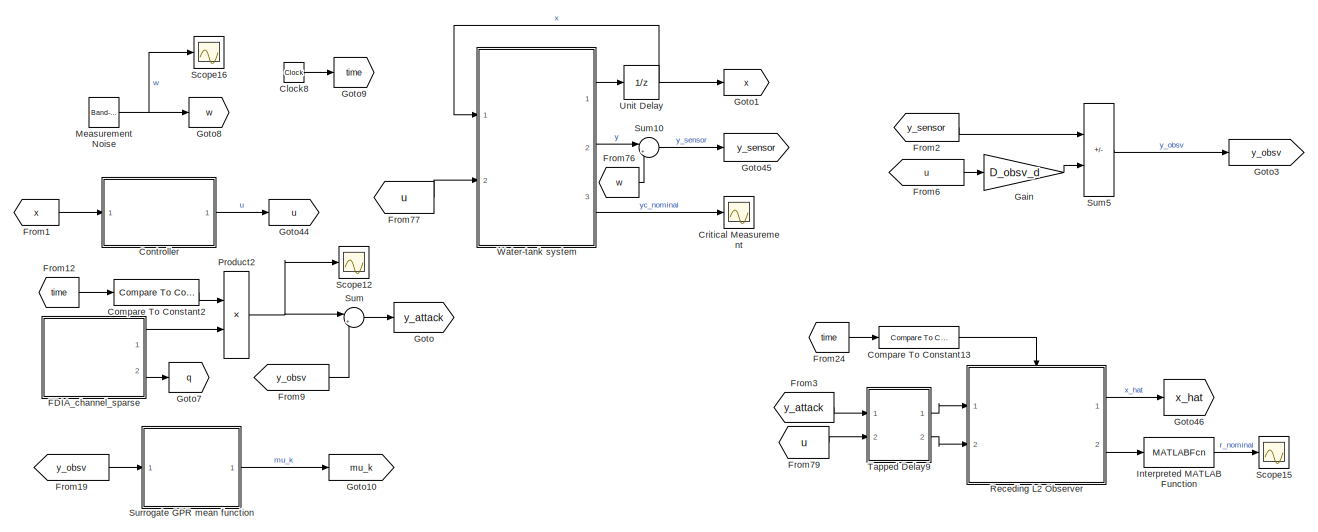
[diagram: root canvas - part 1/3, top left region]
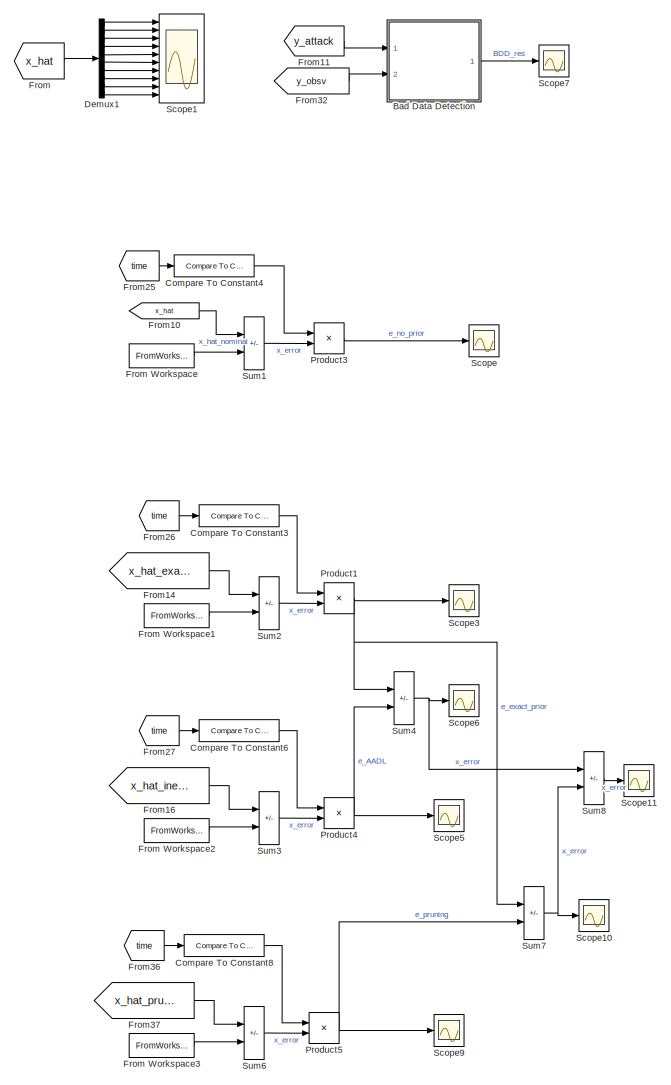
[diagram: root canvas - part 2/3, right side, full height]
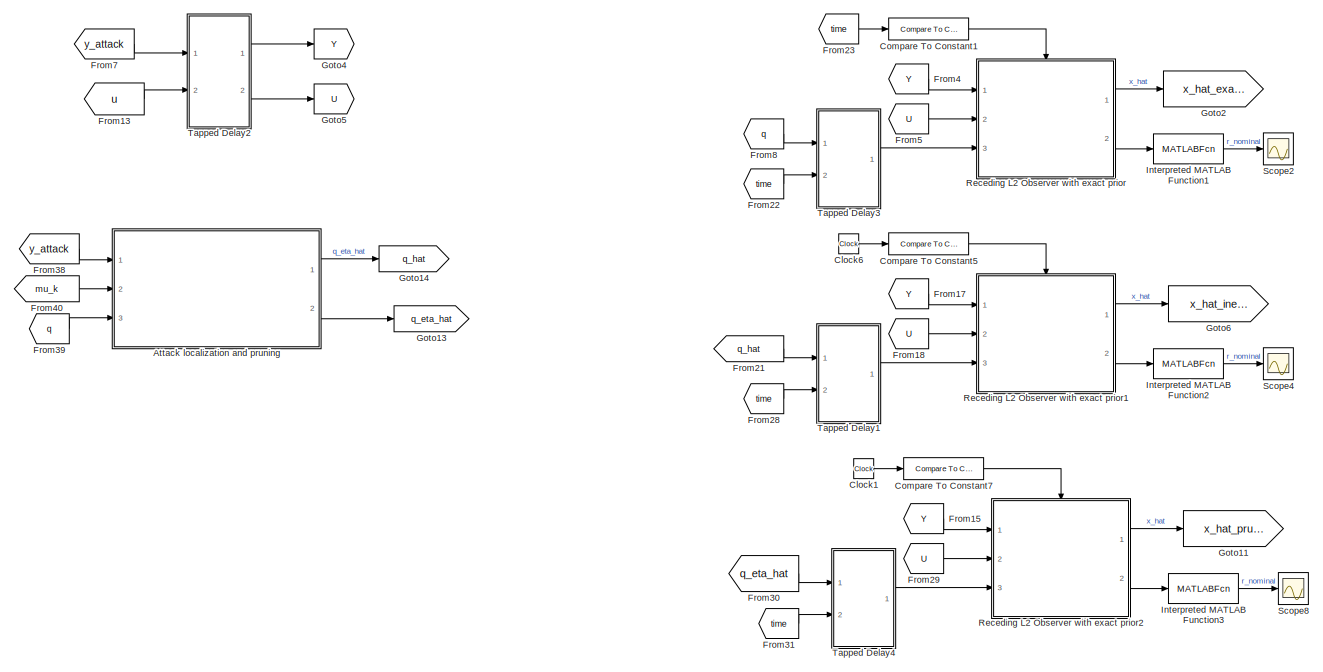
[diagram: root canvas - part 3/3, bottom left region]
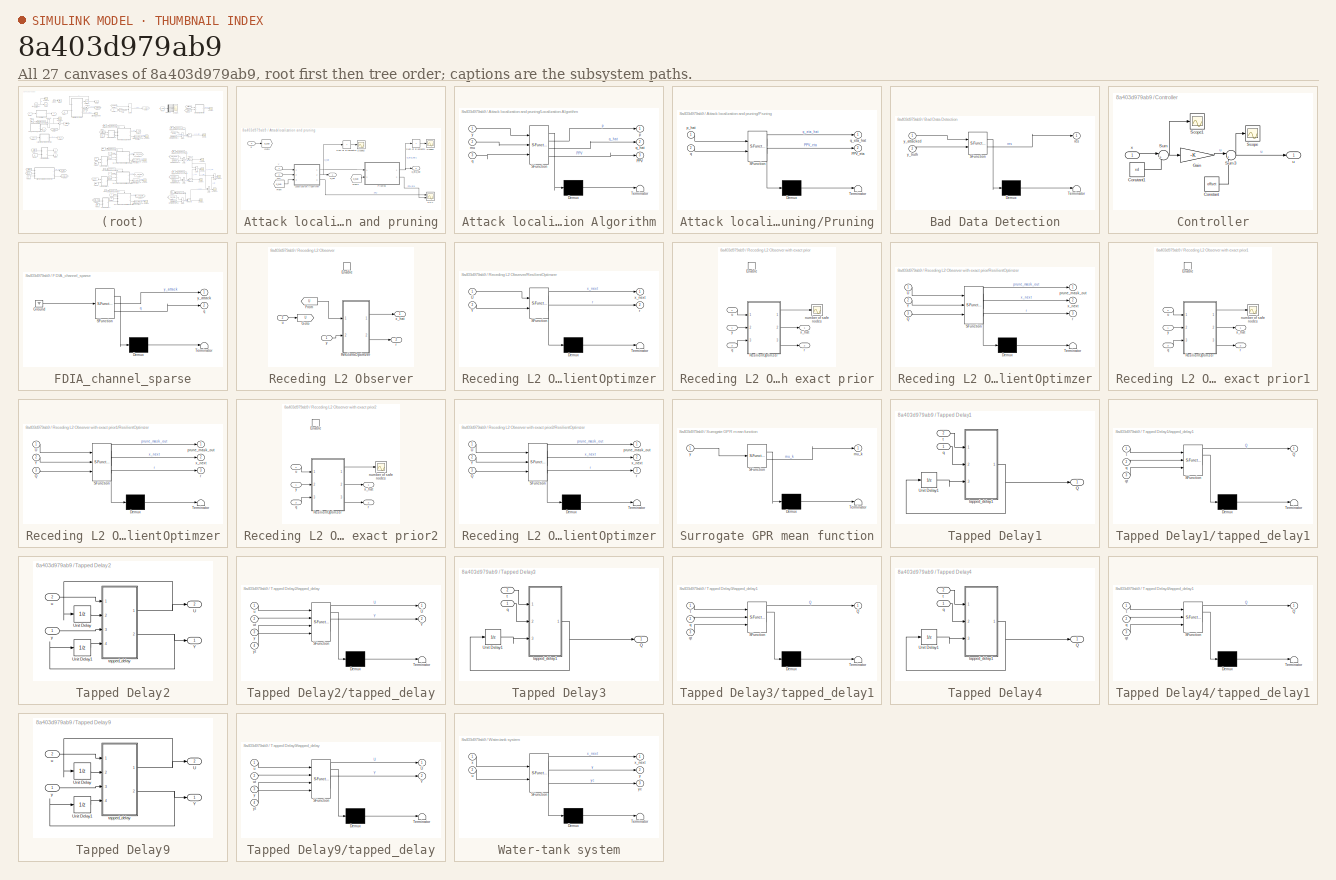
[diagram: thumbnail index - all 27 canvases of the model, root first then tree order]
MODEL slx_8a403d979ab9
KIND model
CONFIG AbsTol = auto
CONFIG EnableMultiTasking = off
CONFIG FixedStep = T_sample
CONFIG MaxStep = auto
CONFIG MinStep = auto
CONFIG RelTol = 1e-3
CONFIG SampleTimeConstraint = Unconstrained
CONFIG SolverName = FixedStepDiscrete
CONFIG StartTime = 0.0
CONFIG StopTime = T_final
BLOCK [SubSystem] Attack localization and pruning
  Ports = [3, 2]
  RequestExecContextInheritance = off
BLOCK [From] Attack localization and pruning/From
  GotoTag = q_sub
BLOCK [From] Attack localization and pruning/From1
  GotoTag = q_sub
BLOCK [Goto] Attack localization and pruning/Goto
  GotoTag = q_sub
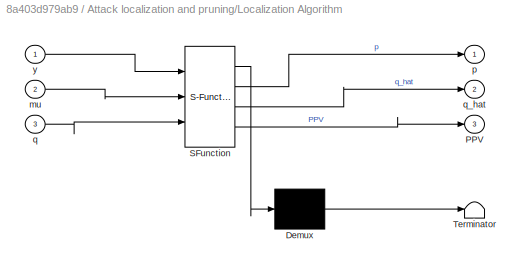
BLOCK [SubSystem] Attack localization and pruning/Localization Algorithm
  ErrorFcn = Stateflow.Translate.translate
  PermitHierarchicalResolution = ExplicitOnly
  Ports = [3, 3]
  RequestExecContextInheritance = off
  SFBlockType = MATLAB Function
  TreatAsAtomicUnit = on
BLOCK [Demux] Attack localization and pruning/Localization Algorithm/ Demux 
  Outputs = 1
  Ports = [1, 1]
BLOCK [S-Function] Attack localization and pruning/Localization Algorithm/ SFunction 
  EnableBusSupport = on
  FunctionName = sf_sfun
  Parameters = Sigma,n_meas
  PortCounts = [3 4]
  Ports = [3, 4]
  SFcnIsStateOwnerBlock = off
  SFunctionDeploymentMode = off
  Tag = Stateflow S-Function 13
BLOCK [Terminator] Attack localization and pruning/Localization Algorithm/ Terminator 
BLOCK [Outport] Attack localization and pruning/Localization Algorithm/PPV
  Port = 3
BLOCK [Inport] Attack localization and pruning/Localization Algorithm/mu
  Port = 2
BLOCK [Outport] Attack localization and pruning/Localization Algorithm/p
BLOCK [Inport] Attack localization and pruning/Localization Algorithm/q
  Port = 3
BLOCK [Outport] Attack localization and pruning/Localization Algorithm/q_hat
  Port = 2
BLOCK [Inport] Attack localization and pruning/Localization Algorithm/y
BLOCK [Scope] Attack localization and pruning/PPV
  Floating = off
  NumInputPorts = 2
  Ports = [2]
  ScopeSpecificationString = Simulink.scopes.TimeScopeBlockCfg('CurrentConfiguration', extmgr.ConfigurationSet(extmgr.Configuration('Core','General UI',true),extmgr.Configuration('Core','Source UI',true),extmgr.Configuration('Sources','WiredSimulink',true,'DataLoggingVariableName','ScopeData21'),extmgr.Configuration('Visuals','Time Domain',true,'SerializedDisplays',{struct('MinYLimReal','0.77869','MaxYLimReal','1.02459','YLab...<+2033ch>
BLOCK [SubSystem] Attack localization and pruning/Pruning
  ErrorFcn = Stateflow.Translate.translate
  PermitHierarchicalResolution = ExplicitOnly
  Ports = [2, 2]
  RequestExecContextInheritance = off
  SFBlockType = MATLAB Function
  TreatAsAtomicUnit = on
BLOCK [Demux] Attack localization and pruning/Pruning/ Demux 
  Outputs = 1
  Ports = [1, 1]
BLOCK [S-Function] Attack localization and pruning/Pruning/ SFunction 
  EnableBusSupport = on
  FunctionName = sf_sfun
  Parameters = P,eta,k0,n_meas
  PortCounts = [2 3]
  Ports = [2, 3]
  SFcnIsStateOwnerBlock = off
  SFunctionDeploymentMode = off
  Tag = Stateflow S-Function 14
BLOCK [Terminator] Attack localization and pruning/Pruning/ Terminator 
BLOCK [Outport] Attack localization and pruning/Pruning/PPV_eta
  Port = 2
BLOCK [Inport] Attack localization and pruning/Pruning/p_hat
BLOCK [Inport] Attack localization and pruning/Pruning/q
  Port = 2
BLOCK [Outport] Attack localization and pruning/Pruning/q_eta_hat
BLOCK [Scope] Attack localization and pruning/Scope1
  Floating = off
  NumInputPorts = 1
  Ports = [1]
  ScopeSpecificationString = Simulink.scopes.TimeScopeBlockCfg('CurrentConfiguration', extmgr.ConfigurationSet(extmgr.Configuration('Core','General UI',true),extmgr.Configuration('Core','Source UI',true),extmgr.Configuration('Sources','WiredSimulink',true,'DataLoggingVariableName','ScopeData17'),extmgr.Configuration('Visuals','Time Domain',true,'SerializedDisplays',{struct('MinYLimReal','46.625','MaxYLimReal','60.375','YLabel...<+1395ch>
BLOCK [Scope] Attack localization and pruning/Scope2
  Floating = off
  NumInputPorts = 1
  Ports = [1]
  ScopeSpecificationString = Simulink.scopes.TimeScopeBlockCfg('CurrentConfiguration', extmgr.ConfigurationSet(extmgr.Configuration('Core','General UI',true),extmgr.Configuration('Core','Source UI',true),extmgr.Configuration('Sources','WiredSimulink',true,'DataLoggingVariableName','ScopeData18'),extmgr.Configuration('Visuals','Time Domain',true,'SerializedDisplays',{struct('MinYLimReal','48.625','MaxYLimReal','62.375','YLabel...<+1420ch>
BLOCK [Sum] Attack localization and pruning/Sum of Elements
  IconShape = rectangular
  Inputs = +
  Ports = [1, 1]
BLOCK [Sum] Attack localization and pruning/Sum of Elements1
  IconShape = rectangular
  Inputs = +
  Ports = [1, 1]
BLOCK [Inport] Attack localization and pruning/mu
  Port = 2
BLOCK [Inport] Attack localization and pruning/q
  Port = 3
BLOCK [Outport] Attack localization and pruning/q_eta_hat
  Port = 2
BLOCK [Outport] Attack localization and pruning/q_hat
BLOCK [Inport] Attack localization and pruning/y
BLOCK [SubSystem] Bad Data Detection
  ErrorFcn = Stateflow.Translate.translate
  PermitHierarchicalResolution = ExplicitOnly
  Ports = [2, 1]
  RequestExecContextInheritance = off
  SFBlockType = MATLAB Function
  TreatAsAtomicUnit = on
BLOCK [Demux] Bad Data Detection/ Demux 
  Outputs = 1
  Ports = [1, 1]
BLOCK [S-Function] Bad Data Detection/ SFunction 
  EnableBusSupport = on
  FunctionName = sf_sfun
  Parameters = U2
  PortCounts = [2 2]
  Ports = [2, 2]
  SFcnIsStateOwnerBlock = off
  SFunctionDeploymentMode = off
  Tag = Stateflow S-Function 12
BLOCK [Terminator] Bad Data Detection/ Terminator 
BLOCK [Outport] Bad Data Detection/res
BLOCK [Inport] Bad Data Detection/y_attacked
BLOCK [Inport] Bad Data Detection/y_truth
  Port = 2
BLOCK [Clock] Clock1
BLOCK [Clock] Clock6
BLOCK [Clock] Clock8
BLOCK [Reference] Compare To Constant1  REF=simulink/Logic and Bit
Operations/Compare
To Constant
  Ports = [1, 1]
  SourceBlock = simulink/Logic and Bit\nOperations/Compare\nTo Constant
  SourceProductBaseCode = SL
  SourceType = Compare To Constant
BLOCK [Reference] Compare To Constant13  REF=simulink/Logic and Bit
Operations/Compare
To Constant
  Ports = [1, 1]
  SourceBlock = simulink/Logic and Bit\nOperations/Compare\nTo Constant
  SourceProductBaseCode = SL
  SourceType = Compare To Constant
BLOCK [Reference] Compare To Constant2  REF=simulink/Logic and Bit
Operations/Compare
To Constant
  Ports = [1, 1]
  SourceBlock = simulink/Logic and Bit\nOperations/Compare\nTo Constant
  SourceProductBaseCode = SL
  SourceType = Compare To Constant
BLOCK [Reference] Compare To Constant3  REF=simulink/Logic and Bit
Operations/Compare
To Constant
  Ports = [1, 1]
  SourceBlock = simulink/Logic and Bit\nOperations/Compare\nTo Constant
  SourceProductBaseCode = SL
  SourceType = Compare To Constant
BLOCK [Reference] Compare To Constant4  REF=simulink/Logic and Bit
Operations/Compare
To Constant
  Ports = [1, 1]
  SourceBlock = simulink/Logic and Bit\nOperations/Compare\nTo Constant
  SourceProductBaseCode = SL
  SourceType = Compare To Constant
BLOCK [Reference] Compare To Constant5  REF=simulink/Logic and Bit
Operations/Compare
To Constant
  Ports = [1, 1]
  SourceBlock = simulink/Logic and Bit\nOperations/Compare\nTo Constant
  SourceProductBaseCode = SL
  SourceType = Compare To Constant
BLOCK [Reference] Compare To Constant6  REF=simulink/Logic and Bit
Operations/Compare
To Constant
  Ports = [1, 1]
  SourceBlock = simulink/Logic and Bit\nOperations/Compare\nTo Constant
  SourceProductBaseCode = SL
  SourceType = Compare To Constant
BLOCK [Reference] Compare To Constant7  REF=simulink/Logic and Bit
Operations/Compare
To Constant
  Ports = [1, 1]
  SourceBlock = simulink/Logic and Bit\nOperations/Compare\nTo Constant
  SourceProductBaseCode = SL
  SourceType = Compare To Constant
BLOCK [Reference] Compare To Constant8  REF=simulink/Logic and Bit
Operations/Compare
To Constant
  Ports = [1, 1]
  SourceBlock = simulink/Logic and Bit\nOperations/Compare\nTo Constant
  SourceProductBaseCode = SL
  SourceType = Compare To Constant
BLOCK [SubSystem] Controller
  Ports = [1, 1]
  RequestExecContextInheritance = off
BLOCK [Constant] Controller/Constant
  Value = offset
BLOCK [Constant] Controller/Constant1
  Value = xd
BLOCK [Gain] Controller/Gain
  Gain = -K
  Multiplication = Matrix(K*u) (u vector)
BLOCK [Scope] Controller/Scope
  Floating = off
  NumInputPorts = 1
  Ports = [1]
  ScopeSpecificationString = Simulink.scopes.TimeScopeBlockCfg('CurrentConfiguration', extmgr.ConfigurationSet(extmgr.Configuration('Core','General UI',true),extmgr.Configuration('Core','Source UI',true),extmgr.Configuration('Sources','WiredSimulink',true),extmgr.Configuration('Visuals','Time Domain',true,'SerializedDisplays',{struct('MinYLimReal','-0.15107','MaxYLimReal','1.13901','YLabelReal','','MinYLimMag','0.00000','MaxY...<+1504ch>
BLOCK [Scope] Controller/Scope1
  Floating = off
  NumInputPorts = 1
  Ports = [1]
  ScopeSpecificationString = Simulink.scopes.TimeScopeBlockCfg('CurrentConfiguration', extmgr.ConfigurationSet(extmgr.Configuration('Core','General UI',true),extmgr.Configuration('Core','Source UI',true),extmgr.Configuration('Sources','WiredSimulink',true,'DataLoggingVariableName','ScopeData8'),extmgr.Configuration('Visuals','Time Domain',true,'SerializedDisplays',{struct('MinYLimReal','-5.625','MaxYLimReal','0.625','YLabelRe...<+1485ch>
BLOCK [Sum] Controller/Sum
  Inputs = |+-
  Ports = [2, 1]
BLOCK [Sum] Controller/Sum3
  Inputs = |++
  Ports = [2, 1]
BLOCK [Outport] Controller/u
BLOCK [Inport] Controller/x
BLOCK [Scope] Critical Measurement
  Floating = off
  NumInputPorts = 1
  Ports = [1]
  ScopeSpecificationString = Simulink.scopes.TimeScopeBlockCfg('CurrentConfiguration', extmgr.ConfigurationSet(extmgr.Configuration('Core','General UI',true),extmgr.Configuration('Core','Source UI',true),extmgr.Configuration('Sources','WiredSimulink',true,'DataLoggingVariableName','ScopeData1'),extmgr.Configuration('Visuals','Time Domain',true,'SerializedDisplays',{struct('MinYLimReal','-4.68179','MaxYLimReal','57.03282','YLa...<+1445ch>
BLOCK [Demux] Demux1
  Outputs = n_states
  Ports = [1, 10]
BLOCK [SubSystem] FDIA_channel_sparse
  ErrorFcn = Stateflow.Translate.translate
  PermitHierarchicalResolution = ExplicitOnly
  Ports = [0, 2]
  RequestExecContextInheritance = off
  SFBlockType = MATLAB Function
  TreatAsAtomicUnit = on
BLOCK [Demux] FDIA_channel_sparse/ Demux 
  Outputs = 1
  Ports = [1, 1]
BLOCK [Ground] FDIA_channel_sparse/ Ground 
BLOCK [S-Function] FDIA_channel_sparse/ SFunction 
  EnableBusSupport = on
  FunctionName = sf_sfun
  Parameters = BDD_thresh,C_obsv_d,max_attack,n_attack,n_meas
  PortCounts = [1 3]
  Ports = [1, 3]
  SFcnIsStateOwnerBlock = off
  SFunctionDeploymentMode = off
  Tag = Stateflow S-Function 11
BLOCK [Terminator] FDIA_channel_sparse/ Terminator 
BLOCK [Outport] FDIA_channel_sparse/q
  Port = 2
BLOCK [Outport] FDIA_channel_sparse/y_attack
BLOCK [From] From
  GotoTag = x_hat
BLOCK [FromWorkspace] From Workspace
  VariableName = x_hat_nominal
BLOCK [FromWorkspace] From Workspace1
  VariableName = x_hat_nominal
BLOCK [FromWorkspace] From Workspace2
  VariableName = x_hat_nominal
BLOCK [FromWorkspace] From Workspace3
  VariableName = x_hat_nominal
BLOCK [From] From1
  GotoTag = x
BLOCK [From] From10
  GotoTag = x_hat
BLOCK [From] From11
  GotoTag = y_attack
BLOCK [From] From12
  GotoTag = time
BLOCK [From] From13
  GotoTag = u
BLOCK [From] From14
  GotoTag = x_hat_exact_prior
BLOCK [From] From15
  GotoTag = Y
BLOCK [From] From16
  GotoTag = x_hat_inexact_prior
BLOCK [From] From17
  GotoTag = Y
BLOCK [From] From18
  GotoTag = U
BLOCK [From] From19
  GotoTag = y_obsv
  TagVisibility = global
BLOCK [From] From2
  GotoTag = y_sensor
BLOCK [From] From21
  GotoTag = q_hat
BLOCK [From] From22
  GotoTag = time
BLOCK [From] From23
  GotoTag = time
BLOCK [From] From24
  GotoTag = time
BLOCK [From] From25
  GotoTag = time
BLOCK [From] From26
  GotoTag = time
BLOCK [From] From27
  GotoTag = time
BLOCK [From] From28
  GotoTag = time
BLOCK [From] From29
  GotoTag = U
BLOCK [From] From3
  GotoTag = y_attack
BLOCK [From] From30
  GotoTag = q_eta_hat
BLOCK [From] From31
  GotoTag = time
BLOCK [From] From32
  GotoTag = y_obsv
  TagVisibility = global
BLOCK [From] From36
  GotoTag = time
BLOCK [From] From37
  GotoTag = x_hat_pruned_prior
BLOCK [From] From38
  GotoTag = y_attack
BLOCK [From] From39
  GotoTag = q
BLOCK [From] From4
  GotoTag = Y
BLOCK [From] From40
  GotoTag = mu_k
  TagVisibility = global
BLOCK [From] From5
  GotoTag = U
BLOCK [From] From6
  GotoTag = u
BLOCK [From] From7
  GotoTag = y_attack
BLOCK [From] From76
  GotoTag = w
BLOCK [From] From77
  GotoTag = u
BLOCK [From] From79
  GotoTag = u
BLOCK [From] From8
  GotoTag = q
BLOCK [From] From9
  GotoTag = y_obsv
  TagVisibility = global
BLOCK [Gain] Gain
  Gain = D_obsv_d
  Multiplication = Matrix(K*u) (u vector)
BLOCK [Goto] Goto
  GotoTag = y_attack
BLOCK [Goto] Goto1
  GotoTag = x
BLOCK [Goto] Goto10
  GotoTag = mu_k
  TagVisibility = global
BLOCK [Goto] Goto11
  GotoTag = x_hat_pruned_prior
BLOCK [Goto] Goto13
  GotoTag = q_eta_hat
BLOCK [Goto] Goto14
  GotoTag = q_hat
BLOCK [Goto] Goto2
  GotoTag = x_hat_exact_prior
BLOCK [Goto] Goto3
  GotoTag = y_obsv
  TagVisibility = global
BLOCK [Goto] Goto4
  GotoTag = Y
BLOCK [Goto] Goto44
  GotoTag = u
BLOCK [Goto] Goto45
  GotoTag = y_sensor
BLOCK [Goto] Goto46
  GotoTag = x_hat
BLOCK [Goto] Goto5
  GotoTag = U
BLOCK [Goto] Goto6
  GotoTag = x_hat_inexact_prior
BLOCK [Goto] Goto7
  GotoTag = q
BLOCK [Goto] Goto8
  GotoTag = w
BLOCK [Goto] Goto9
  GotoTag = time
BLOCK [MATLABFcn] Interpreted MATLAB Function
  MATLABFcn = norm(u)
  Ports = [1, 1]
BLOCK [MATLABFcn] Interpreted MATLAB Function1
  MATLABFcn = norm(u)
  Ports = [1, 1]
BLOCK [MATLABFcn] Interpreted MATLAB Function2
  MATLABFcn = norm(u)
  Ports = [1, 1]
BLOCK [MATLABFcn] Interpreted MATLAB Function3
  MATLABFcn = norm(u)
  Ports = [1, 1]
BLOCK [Reference] Measurement Noise  REF=simulink/Sources/Band-Limited
White Noise
  Ports = [0, 1]
  SourceBlock = simulink/Sources/Band-Limited\nWhite Noise
  SourceProductBaseCode = SL
  SourceType = Band-Limited White Noise.
BLOCK [Product] Product1
  Ports = [2, 1]
BLOCK [Product] Product2
  Ports = [2, 1]
BLOCK [Product] Product3
  Ports = [2, 1]
BLOCK [Product] Product4
  Ports = [2, 1]
BLOCK [Product] Product5
  Ports = [2, 1]
BLOCK [SubSystem] Receding L2 Observer
  Ports = [2, 2, 1]
  RequestExecContextInheritance = off
BLOCK [SubSystem] Receding L2 Observer with exact prior
  Ports = [3, 2, 1]
  RequestExecContextInheritance = off
BLOCK [EnablePort] Receding L2 Observer with exact prior/Enable
  Ports = []
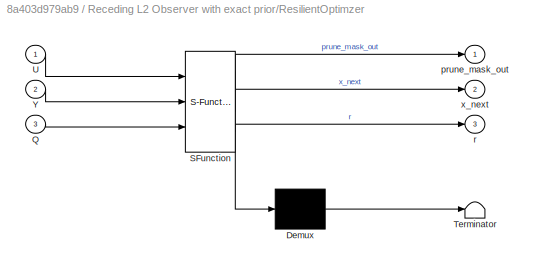
BLOCK [SubSystem] Receding L2 Observer with exact prior/ResilientOptimzer
  ErrorFcn = Stateflow.Translate.translate
  PermitHierarchicalResolution = ExplicitOnly
  Ports = [3, 3]
  RequestExecContextInheritance = off
  SFBlockType = MATLAB Function
  TreatAsAtomicUnit = on
BLOCK [Demux] Receding L2 Observer with exact prior/ResilientOptimzer/ Demux 
  Outputs = 1
  Ports = [1, 1]
BLOCK [S-Function] Receding L2 Observer with exact prior/ResilientOptimzer/ SFunction 
  EnableBusSupport = on
  FunctionName = sf_sfun
  Parameters = A_bar_d,F,H0_full,H0_perp_full,H1_full
  PortCounts = [3 4]
  Ports = [3, 4]
  SFcnIsStateOwnerBlock = off
  SFunctionDeploymentMode = off
  Tag = Stateflow S-Function 1
BLOCK [Terminator] Receding L2 Observer with exact prior/ResilientOptimzer/ Terminator 
BLOCK [Inport] Receding L2 Observer with exact prior/ResilientOptimzer/Q
  Port = 3
BLOCK [Inport] Receding L2 Observer with exact prior/ResilientOptimzer/U
BLOCK [Inport] Receding L2 Observer with exact prior/ResilientOptimzer/Y
  Port = 2
BLOCK [Outport] Receding L2 Observer with exact prior/ResilientOptimzer/prune_mask_out
BLOCK [Outport] Receding L2 Observer with exact prior/ResilientOptimzer/r
  Port = 3
BLOCK [Outport] Receding L2 Observer with exact prior/ResilientOptimzer/x_next
  Port = 2
BLOCK [Scope] Receding L2 Observer with exact prior/number of safe nodes
  Floating = off
  NumInputPorts = 1
  Ports = [1]
  ScopeSpecificationString = Simulink.scopes.TimeScopeBlockCfg('CurrentConfiguration', extmgr.ConfigurationSet(extmgr.Configuration('Core','General UI',true),extmgr.Configuration('Core','Source UI',true),extmgr.Configuration('Sources','WiredSimulink',true,'DataLoggingVariableName','ScopeData11'),extmgr.Configuration('Visuals','Time Domain',true),extmgr.Configuration('Tools','Plot Navigation',true),extmgr.Configuration('Tools'...<+41ch>  <repeated x3 — deduplicated; at blocks: number of safe nodes>
BLOCK [Inport] Receding L2 Observer with exact prior/q
  Port = 3
BLOCK [Outport] Receding L2 Observer with exact prior/r
  Port = 2
BLOCK [Inport] Receding L2 Observer with exact prior/u
  Port = 2
BLOCK [Outport] Receding L2 Observer with exact prior/x_hat
BLOCK [Inport] Receding L2 Observer with exact prior/y
BLOCK [SubSystem] Receding L2 Observer with exact prior1
  Ports = [3, 2, 1]
  RequestExecContextInheritance = off
BLOCK [EnablePort] Receding L2 Observer with exact prior1/Enable
  Ports = []
BLOCK [SubSystem] Receding L2 Observer with exact prior1/ResilientOptimzer
  ErrorFcn = Stateflow.Translate.translate
  PermitHierarchicalResolution = ExplicitOnly
  Ports = [3, 3]
  RequestExecContextInheritance = off
  SFBlockType = MATLAB Function
  TreatAsAtomicUnit = on
BLOCK [Demux] Receding L2 Observer with exact prior1/ResilientOptimzer/ Demux 
  Outputs = 1
  Ports = [1, 1]
BLOCK [S-Function] Receding L2 Observer with exact prior1/ResilientOptimzer/ SFunction 
  EnableBusSupport = on
  FunctionName = sf_sfun
  Parameters = A_bar_d,F,H0_full,H0_perp_full,H1_full
  PortCounts = [3 4]
  Ports = [3, 4]
  SFcnIsStateOwnerBlock = off
  SFunctionDeploymentMode = off
  Tag = Stateflow S-Function 2
BLOCK [Terminator] Receding L2 Observer with exact prior1/ResilientOptimzer/ Terminator 
BLOCK [Inport] Receding L2 Observer with exact prior1/ResilientOptimzer/Q
  Port = 3
BLOCK [Inport] Receding L2 Observer with exact prior1/ResilientOptimzer/U
BLOCK [Inport] Receding L2 Observer with exact prior1/ResilientOptimzer/Y
  Port = 2
BLOCK [Outport] Receding L2 Observer with exact prior1/ResilientOptimzer/prune_mask_out
BLOCK [Outport] Receding L2 Observer with exact prior1/ResilientOptimzer/r
  Port = 3
BLOCK [Outport] Receding L2 Observer with exact prior1/ResilientOptimzer/x_next
  Port = 2
BLOCK [Scope] Receding L2 Observer with exact prior1/number of safe nodes
  Floating = off
  NumInputPorts = 1
  Ports = [1]
BLOCK [Inport] Receding L2 Observer with exact prior1/q
  Port = 3
BLOCK [Outport] Receding L2 Observer with exact prior1/r
  Port = 2
BLOCK [Inport] Receding L2 Observer with exact prior1/u
  Port = 2
BLOCK [Outport] Receding L2 Observer with exact prior1/x_hat
BLOCK [Inport] Receding L2 Observer with exact prior1/y
BLOCK [SubSystem] Receding L2 Observer with exact prior2
  Ports = [3, 2, 1]
  RequestExecContextInheritance = off
BLOCK [EnablePort] Receding L2 Observer with exact prior2/Enable
  Ports = []
BLOCK [SubSystem] Receding L2 Observer with exact prior2/ResilientOptimzer
  ErrorFcn = Stateflow.Translate.translate
  PermitHierarchicalResolution = ExplicitOnly
  Ports = [3, 3]
  RequestExecContextInheritance = off
  SFBlockType = MATLAB Function
  TreatAsAtomicUnit = on
BLOCK [Demux] Receding L2 Observer with exact prior2/ResilientOptimzer/ Demux 
  Outputs = 1
  Ports = [1, 1]
BLOCK [S-Function] Receding L2 Observer with exact prior2/ResilientOptimzer/ SFunction 
  EnableBusSupport = on
  FunctionName = sf_sfun
  Parameters = A_bar_d,F,H0_full,H0_perp_full,H1_full
  PortCounts = [3 4]
  Ports = [3, 4]
  SFcnIsStateOwnerBlock = off
  SFunctionDeploymentMode = off
  Tag = Stateflow S-Function 6
BLOCK [Terminator] Receding L2 Observer with exact prior2/ResilientOptimzer/ Terminator 
BLOCK [Inport] Receding L2 Observer with exact prior2/ResilientOptimzer/Q
  Port = 3
BLOCK [Inport] Receding L2 Observer with exact prior2/ResilientOptimzer/U
BLOCK [Inport] Receding L2 Observer with exact prior2/ResilientOptimzer/Y
  Port = 2
BLOCK [Outport] Receding L2 Observer with exact prior2/ResilientOptimzer/prune_mask_out
BLOCK [Outport] Receding L2 Observer with exact prior2/ResilientOptimzer/r
  Port = 3
BLOCK [Outport] Receding L2 Observer with exact prior2/ResilientOptimzer/x_next
  Port = 2
BLOCK [Scope] Receding L2 Observer with exact prior2/number of safe nodes
  Floating = off
  NumInputPorts = 1
  Ports = [1]
BLOCK [Inport] Receding L2 Observer with exact prior2/q
  Port = 3
BLOCK [Outport] Receding L2 Observer with exact prior2/r
  Port = 2
BLOCK [Inport] Receding L2 Observer with exact prior2/u
  Port = 2
BLOCK [Outport] Receding L2 Observer with exact prior2/x_hat
BLOCK [Inport] Receding L2 Observer with exact prior2/y
BLOCK [EnablePort] Receding L2 Observer/Enable
  Ports = []
BLOCK [From] Receding L2 Observer/From
  GotoTag = U
BLOCK [Goto] Receding L2 Observer/Goto
  GotoTag = U
BLOCK [SubSystem] Receding L2 Observer/ResilientOptimzer
  ErrorFcn = Stateflow.Translate.translate
  PermitHierarchicalResolution = ExplicitOnly
  Ports = [2, 2]
  RequestExecContextInheritance = off
  SFBlockType = MATLAB Function
  TreatAsAtomicUnit = on
BLOCK [Demux] Receding L2 Observer/ResilientOptimzer/ Demux 
  Outputs = 1
  Ports = [1, 1]
BLOCK [S-Function] Receding L2 Observer/ResilientOptimzer/ SFunction 
  EnableBusSupport = on
  FunctionName = sf_sfun
  Parameters = H0_perp_full,H1_full,Lu,Ly
  PortCounts = [2 3]
  Ports = [2, 3]
  SFcnIsStateOwnerBlock = off
  SFunctionDeploymentMode = off
  Tag = Stateflow S-Function 10
BLOCK [Terminator] Receding L2 Observer/ResilientOptimzer/ Terminator 
BLOCK [Inport] Receding L2 Observer/ResilientOptimzer/U
BLOCK [Inport] Receding L2 Observer/ResilientOptimzer/Y
  Port = 2
BLOCK [Outport] Receding L2 Observer/ResilientOptimzer/r
  Port = 2
BLOCK [Outport] Receding L2 Observer/ResilientOptimzer/x_next
BLOCK [Outport] Receding L2 Observer/r
  Port = 2
BLOCK [Inport] Receding L2 Observer/u
  Port = 2
BLOCK [Outport] Receding L2 Observer/x_hat
BLOCK [Inport] Receding L2 Observer/y
BLOCK [Scope] Scope
  Floating = off
  NumInputPorts = 1
  Ports = [1]
  ScopeSpecificationString = Simulink.scopes.TimeScopeBlockCfg('CurrentConfiguration', extmgr.ConfigurationSet(extmgr.Configuration('Core','General UI',true),extmgr.Configuration('Core','Source UI',true),extmgr.Configuration('Sources','WiredSimulink',true,'DataLoggingVariableName','ScopeData9'),extmgr.Configuration('Visuals','Time Domain',true,'SerializedDisplays',{struct('MinYLimReal','-0.51428','MaxYLimReal','0.6652','YLabe...<+1562ch>
BLOCK [Scope] Scope1
  Floating = off
  NumInputPorts = 10
  Ports = [10]
  ScopeSpecificationString = Simulink.scopes.TimeScopeBlockCfg('CurrentConfiguration', extmgr.ConfigurationSet(extmgr.Configuration('Core','General UI',true),extmgr.Configuration('Core','Source UI',true),extmgr.Configuration('Sources','WiredSimulink',true,'DataLoggingVariableName','ScopeData2'),extmgr.Configuration('Visuals','Time Domain',true,'SerializedDisplays',{struct('MinYLimReal','-0.68698','MaxYLimReal','6.18278','YLab...<+9018ch>
BLOCK [Scope] Scope10
  Floating = off
  NumInputPorts = 1
  Ports = [1]
  ScopeSpecificationString = Simulink.scopes.TimeScopeBlockCfg('CurrentConfiguration', extmgr.ConfigurationSet(extmgr.Configuration('Core','General UI',true),extmgr.Configuration('Core','Source UI',true),extmgr.Configuration('Sources','WiredSimulink',true,'DataLoggingVariableName','ScopeData20'),extmgr.Configuration('Visuals','Time Domain',true,'SerializedDisplays',{struct('MinYLimReal','-0.03213','MaxYLimReal','0.0341','YLab...<+1580ch>
BLOCK [Scope] Scope11
  Floating = off
  NumInputPorts = 1
  Ports = [1]
  ScopeSpecificationString = Simulink.scopes.TimeScopeBlockCfg('CurrentConfiguration', extmgr.ConfigurationSet(extmgr.Configuration('Core','General UI',true),extmgr.Configuration('Core','Source UI',true),extmgr.Configuration('Sources','WiredSimulink',true,'DataLoggingVariableName','ScopeData22'),extmgr.Configuration('Visuals','Time Domain',true,'SerializedDisplays',{struct('MinYLimReal','-0.10221','MaxYLimReal','0.11211','YLa...<+1557ch>
BLOCK [Scope] Scope12
  Floating = off
  NumInputPorts = 1
  Ports = [1]
  ScopeSpecificationString = Simulink.scopes.TimeScopeBlockCfg('CurrentConfiguration', extmgr.ConfigurationSet(extmgr.Configuration('Core','General UI',true),extmgr.Configuration('Core','Source UI',true),extmgr.Configuration('Sources','WiredSimulink',true,'DataLoggingVariableName','ScopeData23'),extmgr.Configuration('Visuals','Time Domain',true,'SerializedDisplays',{struct('MinYLimReal','-6.36337','MaxYLimReal','7.03404','YLa...<+2203ch>
BLOCK [Scope] Scope15
  Floating = off
  NumInputPorts = 1
  Ports = [1]
  ScopeSpecificationString = Simulink.scopes.TimeScopeBlockCfg('CurrentConfiguration', extmgr.ConfigurationSet(extmgr.Configuration('Core','General UI',true),extmgr.Configuration('Core','Source UI',true),extmgr.Configuration('Sources','WiredSimulink',true,'DataLoggingVariableName','ScopeData5'),extmgr.Configuration('Visuals','Time Domain',true,'SerializedDisplays',{struct('MinYLimReal','-3.6082','MaxYLimReal','32.4738','YLabe...<+1420ch>
BLOCK [Scope] Scope16
  Floating = off
  NumInputPorts = 1
  Ports = [1]
  ScopeSpecificationString = Simulink.scopes.TimeScopeBlockCfg('CurrentConfiguration', extmgr.ConfigurationSet(extmgr.Configuration('Core','General UI',true),extmgr.Configuration('Core','Source UI',true),extmgr.Configuration('Sources','WiredSimulink',true,'DataLoggingVariableName','ScopeData6'),extmgr.Configuration('Visuals','Time Domain',true,'SerializedDisplays',{struct('MinYLimReal','-0.01438','MaxYLimReal','0.01546','YLab...<+1385ch>
BLOCK [Scope] Scope2
  Floating = off
  NumInputPorts = 1
  Ports = [1]
  ScopeSpecificationString = Simulink.scopes.TimeScopeBlockCfg('CurrentConfiguration', extmgr.ConfigurationSet(extmgr.Configuration('Core','General UI',true),extmgr.Configuration('Core','Source UI',true),extmgr.Configuration('Sources','WiredSimulink',true,'DataLoggingVariableName','ScopeData7'),extmgr.Configuration('Visuals','Time Domain',true,'SerializedDisplays',{struct('MinYLimReal','-3.6082','MaxYLimReal','32.4738','YLabe...<+1420ch>
BLOCK [Scope] Scope3
  Floating = off
  NumInputPorts = 1
  Ports = [1]
  ScopeSpecificationString = Simulink.scopes.TimeScopeBlockCfg('CurrentConfiguration', extmgr.ConfigurationSet(extmgr.Configuration('Core','General UI',true),extmgr.Configuration('Core','Source UI',true),extmgr.Configuration('Sources','WiredSimulink',true,'DataLoggingVariableName','ScopeData12'),extmgr.Configuration('Visuals','Time Domain',true,'SerializedDisplays',{struct('MinYLimReal','-0.01418','MaxYLimReal','0.01021','YLa...<+1616ch>
BLOCK [Scope] Scope4
  Floating = off
  NumInputPorts = 1
  Ports = [1]
  ScopeSpecificationString = Simulink.scopes.TimeScopeBlockCfg('CurrentConfiguration', extmgr.ConfigurationSet(extmgr.Configuration('Core','General UI',true),extmgr.Configuration('Core','Source UI',true),extmgr.Configuration('Sources','WiredSimulink',true,'DataLoggingVariableName','ScopeData13'),extmgr.Configuration('Visuals','Time Domain',true,'SerializedDisplays',{struct('MinYLimReal','-0.31973','MaxYLimReal','2.87759','YLa...<+1423ch>
BLOCK [Scope] Scope5
  Floating = off
  NumInputPorts = 1
  Ports = [1]
  ScopeSpecificationString = Simulink.scopes.TimeScopeBlockCfg('CurrentConfiguration', extmgr.ConfigurationSet(extmgr.Configuration('Core','General UI',true),extmgr.Configuration('Core','Source UI',true),extmgr.Configuration('Sources','WiredSimulink',true,'DataLoggingVariableName','ScopeData14'),extmgr.Configuration('Visuals','Time Domain',true,'SerializedDisplays',{struct('MinYLimReal','-0.11195','MaxYLimReal','0.11084','YLa...<+1576ch>
BLOCK [Scope] Scope6
  Floating = off
  NumInputPorts = 1
  Ports = [1]
  ScopeSpecificationString = Simulink.scopes.TimeScopeBlockCfg('CurrentConfiguration', extmgr.ConfigurationSet(extmgr.Configuration('Core','General UI',true),extmgr.Configuration('Core','Source UI',true),extmgr.Configuration('Sources','WiredSimulink',true,'DataLoggingVariableName','ScopeData15'),extmgr.Configuration('Visuals','Time Domain',true,'SerializedDisplays',{struct('MinYLimReal','-0.12648','MaxYLimReal','0.09487','YLa...<+1553ch>
BLOCK [Scope] Scope7
  Floating = off
  NumInputPorts = 1
  Ports = [1]
  ScopeSpecificationString = Simulink.scopes.TimeScopeBlockCfg('CurrentConfiguration', extmgr.ConfigurationSet(extmgr.Configuration('Core','General UI',true),extmgr.Configuration('Core','Source UI',true),extmgr.Configuration('Sources','WiredSimulink',true,'DataLoggingVariableName','ScopeData10'),extmgr.Configuration('Visuals','Time Domain',true,'SerializedDisplays',{struct('MinYLimReal','-0.62603','MaxYLimReal','5.63465','YLa...<+1414ch>
BLOCK [Scope] Scope8
  Floating = off
  NumInputPorts = 1
  Ports = [1]
  ScopeSpecificationString = Simulink.scopes.TimeScopeBlockCfg('CurrentConfiguration', extmgr.ConfigurationSet(extmgr.Configuration('Core','General UI',true),extmgr.Configuration('Core','Source UI',true),extmgr.Configuration('Sources','WiredSimulink',true,'DataLoggingVariableName','ScopeData16'),extmgr.Configuration('Visuals','Time Domain',true,'SerializedDisplays',{struct('MinYLimReal','-0.31973','MaxYLimReal','2.87759','YLa...<+1423ch>
BLOCK [Scope] Scope9
  Floating = off
  NumInputPorts = 1
  Ports = [1]
  ScopeSpecificationString = Simulink.scopes.TimeScopeBlockCfg('CurrentConfiguration', extmgr.ConfigurationSet(extmgr.Configuration('Core','General UI',true),extmgr.Configuration('Core','Source UI',true),extmgr.Configuration('Sources','WiredSimulink',true,'DataLoggingVariableName','ScopeData19'),extmgr.Configuration('Visuals','Time Domain',true,'SerializedDisplays',{struct('MinYLimReal','-0.03082','MaxYLimReal','0.02724','YLa...<+1576ch>
BLOCK [Sum] Sum
  Inputs = |++
  Ports = [2, 1]
BLOCK [Sum] Sum1
  IconShape = rectangular
  Inputs = +-
  Ports = [2, 1]
BLOCK [Sum] Sum10
  Inputs = |++
  Ports = [2, 1]
BLOCK [Sum] Sum2
  IconShape = rectangular
  Inputs = +-
  Ports = [2, 1]
BLOCK [Sum] Sum3
  IconShape = rectangular
  Inputs = +-
  Ports = [2, 1]
BLOCK [Sum] Sum4
  IconShape = rectangular
  Inputs = +-
  Ports = [2, 1]
BLOCK [Sum] Sum5
  IconShape = rectangular
  Inputs = +-
  Ports = [2, 1]
BLOCK [Sum] Sum6
  IconShape = rectangular
  Inputs = +-
  Ports = [2, 1]
BLOCK [Sum] Sum7
  IconShape = rectangular
  Inputs = +-
  Ports = [2, 1]
BLOCK [Sum] Sum8
  IconShape = rectangular
  Inputs = +-
  Ports = [2, 1]
BLOCK [SubSystem] Surrogate GPR mean function
  ErrorFcn = Stateflow.Translate.translate
  PermitHierarchicalResolution = ExplicitOnly
  Ports = [1, 1]
  RequestExecContextInheritance = off
  SFBlockType = MATLAB Function
  TreatAsAtomicUnit = on
BLOCK [Demux] Surrogate GPR mean function/ Demux 
  Outputs = 1
  Ports = [1, 1]
BLOCK [S-Function] Surrogate GPR mean function/ SFunction 
  EnableBusSupport = on
  FunctionName = sf_sfun
  Parameters = n_meas,r_tau,sigma_inv_k
  PortCounts = [1 2]
  Ports = [1, 2]
  SFcnIsStateOwnerBlock = off
  SFunctionDeploymentMode = off
  Tag = Stateflow S-Function 5
BLOCK [Terminator] Surrogate GPR mean function/ Terminator 
BLOCK [Outport] Surrogate GPR mean function/mu_k
BLOCK [Inport] Surrogate GPR mean function/y
BLOCK [SubSystem] Tapped Delay1
  Ports = [2, 1]
  RequestExecContextInheritance = off
BLOCK [Outport] Tapped Delay1/Q
BLOCK [UnitDelay] Tapped Delay1/Unit Delay1
  HasFrameUpgradeWarning = on
  InitialCondition = Q0
  SampleTime = -1
BLOCK [Inport] Tapped Delay1/q
BLOCK [Inport] Tapped Delay1/t
  Port = 2
BLOCK [SubSystem] Tapped Delay1/tapped_delay1
  ErrorFcn = Stateflow.Translate.translate
  PermitHierarchicalResolution = ExplicitOnly
  Ports = [3, 1]
  RequestExecContextInheritance = off
  SFBlockType = MATLAB Function
  TreatAsAtomicUnit = on
BLOCK [Demux] Tapped Delay1/tapped_delay1/ Demux 
  Outputs = 1
  Ports = [1, 1]
BLOCK [S-Function] Tapped Delay1/tapped_delay1/ SFunction 
  EnableBusSupport = on
  FunctionName = sf_sfun
  Parameters = T,T_start_attack,n_meas
  PortCounts = [3 2]
  Ports = [3, 2]
  SFcnIsStateOwnerBlock = off
  SFunctionDeploymentMode = off
  Tag = Stateflow S-Function 4
BLOCK [Terminator] Tapped Delay1/tapped_delay1/ Terminator 
BLOCK [Outport] Tapped Delay1/tapped_delay1/Q
BLOCK [Inport] Tapped Delay1/tapped_delay1/q
  Port = 2
BLOCK [Inport] Tapped Delay1/tapped_delay1/qt
  Port = 3
BLOCK [Inport] Tapped Delay1/tapped_delay1/t
BLOCK [SubSystem] Tapped Delay2
  Ports = [2, 2]
  RequestExecContextInheritance = off
BLOCK [Outport] Tapped Delay2/U
  Port = 2
BLOCK [UnitDelay] Tapped Delay2/Unit Delay
  HasFrameUpgradeWarning = on
  InitialCondition = U0
  SampleTime = -1
BLOCK [UnitDelay] Tapped Delay2/Unit Delay1
  HasFrameUpgradeWarning = on
  InitialCondition = Y0
  SampleTime = -1
BLOCK [Outport] Tapped Delay2/Y
BLOCK [SubSystem] Tapped Delay2/tapped_delay
  ErrorFcn = Stateflow.Translate.translate
  PermitHierarchicalResolution = ExplicitOnly
  Ports = [4, 2]
  RequestExecContextInheritance = off
  SFBlockType = MATLAB Function
  TreatAsAtomicUnit = on
BLOCK [Demux] Tapped Delay2/tapped_delay/ Demux 
  Outputs = 1
  Ports = [1, 1]
BLOCK [S-Function] Tapped Delay2/tapped_delay/ SFunction 
  EnableBusSupport = on
  FunctionName = sf_sfun
  PortCounts = [4 3]
  Ports = [4, 3]
  SFcnIsStateOwnerBlock = off
  SFunctionDeploymentMode = off
  Tag = Stateflow S-Function 3
BLOCK [Terminator] Tapped Delay2/tapped_delay/ Terminator 
BLOCK [Outport] Tapped Delay2/tapped_delay/U
BLOCK [Outport] Tapped Delay2/tapped_delay/Y
  Port = 2
BLOCK [Inport] Tapped Delay2/tapped_delay/u
BLOCK [Inport] Tapped Delay2/tapped_delay/ut
  Port = 2
BLOCK [Inport] Tapped Delay2/tapped_delay/y
  Port = 3
BLOCK [Inport] Tapped Delay2/tapped_delay/yt
  Port = 4
BLOCK [Inport] Tapped Delay2/u
  Port = 2
BLOCK [Inport] Tapped Delay2/y
BLOCK [SubSystem] Tapped Delay3
  Ports = [2, 1]
  RequestExecContextInheritance = off
BLOCK [Outport] Tapped Delay3/Q
BLOCK [UnitDelay] Tapped Delay3/Unit Delay1
  HasFrameUpgradeWarning = on
  InitialCondition = Q0
  SampleTime = -1
BLOCK [Inport] Tapped Delay3/q
BLOCK [Inport] Tapped Delay3/t
  Port = 2
BLOCK [SubSystem] Tapped Delay3/tapped_delay1
  ErrorFcn = Stateflow.Translate.translate
  PermitHierarchicalResolution = ExplicitOnly
  Ports = [3, 1]
  RequestExecContextInheritance = off
  SFBlockType = MATLAB Function
  TreatAsAtomicUnit = on
BLOCK [Demux] Tapped Delay3/tapped_delay1/ Demux 
  Outputs = 1
  Ports = [1, 1]
BLOCK [S-Function] Tapped Delay3/tapped_delay1/ SFunction 
  EnableBusSupport = on
  FunctionName = sf_sfun
  Parameters = T,T_start_attack,n_meas
  PortCounts = [3 2]
  Ports = [3, 2]
  SFcnIsStateOwnerBlock = off
  SFunctionDeploymentMode = off
  Tag = Stateflow S-Function 9
BLOCK [Terminator] Tapped Delay3/tapped_delay1/ Terminator 
BLOCK [Outport] Tapped Delay3/tapped_delay1/Q
BLOCK [Inport] Tapped Delay3/tapped_delay1/q
  Port = 2
BLOCK [Inport] Tapped Delay3/tapped_delay1/qt
  Port = 3
BLOCK [Inport] Tapped Delay3/tapped_delay1/t
BLOCK [SubSystem] Tapped Delay4
  Ports = [2, 1]
  RequestExecContextInheritance = off
BLOCK [Outport] Tapped Delay4/Q
BLOCK [UnitDelay] Tapped Delay4/Unit Delay1
  HasFrameUpgradeWarning = on
  InitialCondition = Q0
  SampleTime = -1
BLOCK [Inport] Tapped Delay4/q
BLOCK [Inport] Tapped Delay4/t
  Port = 2
BLOCK [SubSystem] Tapped Delay4/tapped_delay1
  ErrorFcn = Stateflow.Translate.translate
  PermitHierarchicalResolution = ExplicitOnly
  Ports = [3, 1]
  RequestExecContextInheritance = off
  SFBlockType = MATLAB Function
  TreatAsAtomicUnit = on
BLOCK [Demux] Tapped Delay4/tapped_delay1/ Demux 
  Outputs = 1
  Ports = [1, 1]
BLOCK [S-Function] Tapped Delay4/tapped_delay1/ SFunction 
  EnableBusSupport = on
  FunctionName = sf_sfun
  Parameters = T,T_start_attack,n_meas
  PortCounts = [3 2]
  Ports = [3, 2]
  SFcnIsStateOwnerBlock = off
  SFunctionDeploymentMode = off
  Tag = Stateflow S-Function 7
BLOCK [Terminator] Tapped Delay4/tapped_delay1/ Terminator 
BLOCK [Outport] Tapped Delay4/tapped_delay1/Q
BLOCK [Inport] Tapped Delay4/tapped_delay1/q
  Port = 2
BLOCK [Inport] Tapped Delay4/tapped_delay1/qt
  Port = 3
BLOCK [Inport] Tapped Delay4/tapped_delay1/t
BLOCK [SubSystem] Tapped Delay9
  Ports = [2, 2]
  RequestExecContextInheritance = off
BLOCK [Outport] Tapped Delay9/U
  Port = 2
BLOCK [UnitDelay] Tapped Delay9/Unit Delay
  HasFrameUpgradeWarning = on
  InitialCondition = U0
  SampleTime = -1
BLOCK [UnitDelay] Tapped Delay9/Unit Delay1
  HasFrameUpgradeWarning = on
  InitialCondition = Y0
  SampleTime = -1
BLOCK [Outport] Tapped Delay9/Y
BLOCK [SubSystem] Tapped Delay9/tapped_delay
  ErrorFcn = Stateflow.Translate.translate
  PermitHierarchicalResolution = ExplicitOnly
  Ports = [4, 2]
  RequestExecContextInheritance = off
  SFBlockType = MATLAB Function
  TreatAsAtomicUnit = on
BLOCK [Demux] Tapped Delay9/tapped_delay/ Demux 
  Outputs = 1
  Ports = [1, 1]
BLOCK [S-Function] Tapped Delay9/tapped_delay/ SFunction 
  EnableBusSupport = on
  FunctionName = sf_sfun
  PortCounts = [4 3]
  Ports = [4, 3]
  SFcnIsStateOwnerBlock = off
  SFunctionDeploymentMode = off
  Tag = Stateflow S-Function 27
BLOCK [Terminator] Tapped Delay9/tapped_delay/ Terminator 
BLOCK [Outport] Tapped Delay9/tapped_delay/U
BLOCK [Outport] Tapped Delay9/tapped_delay/Y
  Port = 2
BLOCK [Inport] Tapped Delay9/tapped_delay/u
BLOCK [Inport] Tapped Delay9/tapped_delay/ut
  Port = 2
BLOCK [Inport] Tapped Delay9/tapped_delay/y
  Port = 3
BLOCK [Inport] Tapped Delay9/tapped_delay/yt
  Port = 4
BLOCK [Inport] Tapped Delay9/u
  Port = 2
BLOCK [Inport] Tapped Delay9/y
BLOCK [UnitDelay] Unit Delay
  HasFrameUpgradeWarning = on
  InitialCondition = x0
  SampleTime = -1
BLOCK [SubSystem] Water-tank system
  ErrorFcn = Stateflow.Translate.translate
  PermitHierarchicalResolution = ExplicitOnly
  Ports = [2, 3]
  RequestExecContextInheritance = off
  SFBlockType = MATLAB Function
  TreatAsAtomicUnit = on
BLOCK [Demux] Water-tank system/ Demux 
  Outputs = 1
  Ports = [1, 1]
BLOCK [S-Function] Water-tank system/ SFunction 
  EnableBusSupport = on
  FunctionName = sf_sfun
  Parameters = A_bar_d,B_bar_d,C_obsv_d,Cm,D_obsv_d
  PortCounts = [2 4]
  Ports = [2, 4]
  SFcnIsStateOwnerBlock = off
  SFunctionDeploymentMode = off
  Tag = Stateflow S-Function 35
BLOCK [Terminator] Water-tank system/ Terminator 
BLOCK [Inport] Water-tank system/u
  Port = 2
BLOCK [Inport] Water-tank system/x
BLOCK [Outport] Water-tank system/x_next
BLOCK [Outport] Water-tank system/y
  Port = 2
BLOCK [Outport] Water-tank system/yc
  Port = 3
LINE Attack localization and pruning/From1:1 -> Attack localization and pruning/Pruning:2
LINE Attack localization and pruning/From:1 -> Attack localization and pruning/Localization Algorithm:3
LINE Attack localization and pruning/Localization Algorithm:1 -> Attack localization and pruning/Pruning:1
NET Attack localization and pruning/Localization Algorithm:2 -> Attack localization and pruning/Sum of Elements1:1, Attack localization and pruning/q_hat:1
LINE Attack localization and pruning/Localization Algorithm:3 -> Attack localization and pruning/PPV:1
NET Attack localization and pruning/Pruning:1 -> Attack localization and pruning/Sum of Elements:1, Attack localization and pruning/q_eta_hat:1
LINE Attack localization and pruning/Pruning:2 -> Attack localization and pruning/PPV:2
LINE Attack localization and pruning/Sum of Elements1:1 -> Attack localization and pruning/Scope2:1
LINE Attack localization and pruning/Sum of Elements:1 -> Attack localization and pruning/Scope1:1
LINE Attack localization and pruning/mu:1 -> Attack localization and pruning/Localization Algorithm:2
LINE Attack localization and pruning/q:1 -> Attack localization and pruning/Goto:1
LINE Attack localization and pruning/y:1 -> Attack localization and pruning/Localization Algorithm:1
LINE Attack localization and pruning:1 -> Goto14:1
LINE Attack localization and pruning:2 -> Goto13:1
LINE Bad Data Detection:1 -> Scope7:1
LINE Clock1:1 -> Compare To Constant7:1
LINE Clock6:1 -> Compare To Constant5:1
LINE Clock8:1 -> Goto9:1
LINE Compare To Constant13:1 -> Receding L2 Observer:enable
LINE Compare To Constant1:1 -> Receding L2 Observer with exact prior:enable
LINE Compare To Constant2:1 -> Product2:1
LINE Compare To Constant3:1 -> Product1:1
LINE Compare To Constant4:1 -> Product3:1
LINE Compare To Constant5:1 -> Receding L2 Observer with exact prior1:enable
LINE Compare To Constant6:1 -> Product4:1
LINE Compare To Constant7:1 -> Receding L2 Observer with exact prior2:enable
LINE Compare To Constant8:1 -> Product5:1
LINE Controller/Constant1:1 -> Controller/Sum:2
LINE Controller/Constant:1 -> Controller/Sum3:2
LINE Controller/Gain:1 -> Controller/Sum3:1
NET Controller/Sum3:1 -> Controller/Scope:1, Controller/u:1
NET Controller/Sum:1 -> Controller/Gain:1, Controller/Scope1:1
LINE Controller/x:1 -> Controller/Sum:1
LINE Controller:1 -> Goto44:1
LINE Demux1:1 -> Scope1:1
LINE Demux1:10 -> Scope1:10
LINE Demux1:2 -> Scope1:2
LINE Demux1:3 -> Scope1:3
LINE Demux1:4 -> Scope1:4
LINE Demux1:5 -> Scope1:5
LINE Demux1:6 -> Scope1:6
LINE Demux1:7 -> Scope1:7
LINE Demux1:8 -> Scope1:8
LINE Demux1:9 -> Scope1:9
LINE FDIA_channel_sparse:1 -> Product2:2
LINE FDIA_channel_sparse:2 -> Goto7:1
LINE From Workspace1:1 -> Sum2:2
LINE From Workspace2:1 -> Sum3:2
LINE From Workspace3:1 -> Sum6:2
LINE From Workspace:1 -> Sum1:2
LINE From10:1 -> Sum1:1
LINE From11:1 -> Bad Data Detection:1
LINE From12:1 -> Compare To Constant2:1
LINE From13:1 -> Tapped Delay2:2
LINE From14:1 -> Sum2:1
LINE From15:1 -> Receding L2 Observer with exact prior2:1
LINE From16:1 -> Sum3:1
LINE From17:1 -> Receding L2 Observer with exact prior1:1
LINE From18:1 -> Receding L2 Observer with exact prior1:2
LINE From19:1 -> Surrogate GPR mean function:1
LINE From1:1 -> Controller:1
LINE From21:1 -> Tapped Delay1:1
LINE From22:1 -> Tapped Delay3:2
LINE From23:1 -> Compare To Constant1:1
LINE From24:1 -> Compare To Constant13:1
LINE From25:1 -> Compare To Constant4:1
LINE From26:1 -> Compare To Constant3:1
LINE From27:1 -> Compare To Constant6:1
LINE From28:1 -> Tapped Delay1:2
LINE From29:1 -> Receding L2 Observer with exact prior2:2
LINE From2:1 -> Sum5:1
LINE From30:1 -> Tapped Delay4:1
LINE From31:1 -> Tapped Delay4:2
LINE From32:1 -> Bad Data Detection:2
LINE From36:1 -> Compare To Constant8:1
LINE From37:1 -> Sum6:1
LINE From38:1 -> Attack localization and pruning:1
LINE From39:1 -> Attack localization and pruning:3
LINE From3:1 -> Tapped Delay9:1
LINE From40:1 -> Attack localization and pruning:2
LINE From4:1 -> Receding L2 Observer with exact prior:1
LINE From5:1 -> Receding L2 Observer with exact prior:2
LINE From6:1 -> Gain:1
LINE From76:1 -> Sum10:2
LINE From77:1 -> Water-tank system:2
LINE From79:1 -> Tapped Delay9:2
LINE From7:1 -> Tapped Delay2:1
LINE From8:1 -> Tapped Delay3:1
LINE From9:1 -> Sum:2
LINE From:1 -> Demux1:1
LINE Gain:1 -> Sum5:2
LINE Interpreted MATLAB Function1:1 -> Scope2:1
LINE Interpreted MATLAB Function2:1 -> Scope4:1
LINE Interpreted MATLAB Function3:1 -> Scope8:1
LINE Interpreted MATLAB Function:1 -> Scope15:1
NET Measurement Noise:1 -> Goto8:1, Scope16:1
NET Product1:1 -> Scope3:1, Sum4:1, Sum7:1
NET Product2:1 -> Scope12:1, Sum:1
LINE Product3:1 -> Scope:1
NET Product4:1 -> Scope5:1, Sum4:2
NET Product5:1 -> Scope9:1, Sum7:2
LINE Receding L2 Observer with exact prior/ResilientOptimzer:1 -> Receding L2 Observer with exact prior/number of safe nodes:1
LINE Receding L2 Observer with exact prior/ResilientOptimzer:2 -> Receding L2 Observer with exact prior/x_hat:1
LINE Receding L2 Observer with exact prior/ResilientOptimzer:3 -> Receding L2 Observer with exact prior/r:1
LINE Receding L2 Observer with exact prior/q:1 -> Receding L2 Observer with exact prior/ResilientOptimzer:3
LINE Receding L2 Observer with exact prior/u:1 -> Receding L2 Observer with exact prior/ResilientOptimzer:1
LINE Receding L2 Observer with exact prior/y:1 -> Receding L2 Observer with exact prior/ResilientOptimzer:2
LINE Receding L2 Observer with exact prior1/ResilientOptimzer:1 -> Receding L2 Observer with exact prior1/number of safe nodes:1
LINE Receding L2 Observer with exact prior1/ResilientOptimzer:2 -> Receding L2 Observer with exact prior1/x_hat:1
LINE Receding L2 Observer with exact prior1/ResilientOptimzer:3 -> Receding L2 Observer with exact prior1/r:1
LINE Receding L2 Observer with exact prior1/q:1 -> Receding L2 Observer with exact prior1/ResilientOptimzer:3
LINE Receding L2 Observer with exact prior1/u:1 -> Receding L2 Observer with exact prior1/ResilientOptimzer:1
LINE Receding L2 Observer with exact prior1/y:1 -> Receding L2 Observer with exact prior1/ResilientOptimzer:2
LINE Receding L2 Observer with exact prior1:1 -> Goto6:1
LINE Receding L2 Observer with exact prior1:2 -> Interpreted MATLAB Function2:1
LINE Receding L2 Observer with exact prior2/ResilientOptimzer:1 -> Receding L2 Observer with exact prior2/number of safe nodes:1
LINE Receding L2 Observer with exact prior2/ResilientOptimzer:2 -> Receding L2 Observer with exact prior2/x_hat:1
LINE Receding L2 Observer with exact prior2/ResilientOptimzer:3 -> Receding L2 Observer with exact prior2/r:1
LINE Receding L2 Observer with exact prior2/q:1 -> Receding L2 Observer with exact prior2/ResilientOptimzer:3
LINE Receding L2 Observer with exact prior2/u:1 -> Receding L2 Observer with exact prior2/ResilientOptimzer:1
LINE Receding L2 Observer with exact prior2/y:1 -> Receding L2 Observer with exact prior2/ResilientOptimzer:2
LINE Receding L2 Observer with exact prior2:1 -> Goto11:1
LINE Receding L2 Observer with exact prior2:2 -> Interpreted MATLAB Function3:1
LINE Receding L2 Observer with exact prior:1 -> Goto2:1
LINE Receding L2 Observer with exact prior:2 -> Interpreted MATLAB Function1:1
LINE Receding L2 Observer/From:1 -> Receding L2 Observer/ResilientOptimzer:1
LINE Receding L2 Observer/ResilientOptimzer:1 -> Receding L2 Observer/x_hat:1
LINE Receding L2 Observer/ResilientOptimzer:2 -> Receding L2 Observer/r:1
LINE Receding L2 Observer/u:1 -> Receding L2 Observer/Goto:1
LINE Receding L2 Observer/y:1 -> Receding L2 Observer/ResilientOptimzer:2
LINE Receding L2 Observer:1 -> Goto46:1
LINE Receding L2 Observer:2 -> Interpreted MATLAB Function:1
LINE Sum10:1 -> Goto45:1
LINE Sum1:1 -> Product3:2
LINE Sum2:1 -> Product1:2
LINE Sum3:1 -> Product4:2
NET Sum4:1 -> Scope6:1, Sum8:1
LINE Sum5:1 -> Goto3:1
LINE Sum6:1 -> Product5:2
NET Sum7:1 -> Scope10:1, Sum8:2
LINE Sum8:1 -> Scope11:1
LINE Sum:1 -> Goto:1
LINE Surrogate GPR mean function:1 -> Goto10:1
LINE Tapped Delay1/Unit Delay1:1 -> Tapped Delay1/tapped_delay1:3
LINE Tapped Delay1/q:1 -> Tapped Delay1/tapped_delay1:2
LINE Tapped Delay1/t:1 -> Tapped Delay1/tapped_delay1:1
NET Tapped Delay1/tapped_delay1:1 -> Tapped Delay1/Q:1, Tapped Delay1/Unit Delay1:1
LINE Tapped Delay1:1 -> Receding L2 Observer with exact prior1:3
LINE Tapped Delay2/Unit Delay1:1 -> Tapped Delay2/tapped_delay:4
LINE Tapped Delay2/Unit Delay:1 -> Tapped Delay2/tapped_delay:2
NET Tapped Delay2/tapped_delay:1 -> Tapped Delay2/U:1, Tapped Delay2/Unit Delay:1
NET Tapped Delay2/tapped_delay:2 -> Tapped Delay2/Unit Delay1:1, Tapped Delay2/Y:1
LINE Tapped Delay2/u:1 -> Tapped Delay2/tapped_delay:1
LINE Tapped Delay2/y:1 -> Tapped Delay2/tapped_delay:3
LINE Tapped Delay2:1 -> Goto4:1
LINE Tapped Delay2:2 -> Goto5:1
LINE Tapped Delay3/Unit Delay1:1 -> Tapped Delay3/tapped_delay1:3
LINE Tapped Delay3/q:1 -> Tapped Delay3/tapped_delay1:2
LINE Tapped Delay3/t:1 -> Tapped Delay3/tapped_delay1:1
NET Tapped Delay3/tapped_delay1:1 -> Tapped Delay3/Q:1, Tapped Delay3/Unit Delay1:1
LINE Tapped Delay3:1 -> Receding L2 Observer with exact prior:3
LINE Tapped Delay4/Unit Delay1:1 -> Tapped Delay4/tapped_delay1:3
LINE Tapped Delay4/q:1 -> Tapped Delay4/tapped_delay1:2
LINE Tapped Delay4/t:1 -> Tapped Delay4/tapped_delay1:1
NET Tapped Delay4/tapped_delay1:1 -> Tapped Delay4/Q:1, Tapped Delay4/Unit Delay1:1
LINE Tapped Delay4:1 -> Receding L2 Observer with exact prior2:3
LINE Tapped Delay9/Unit Delay1:1 -> Tapped Delay9/tapped_delay:4
LINE Tapped Delay9/Unit Delay:1 -> Tapped Delay9/tapped_delay:2
NET Tapped Delay9/tapped_delay:1 -> Tapped Delay9/U:1, Tapped Delay9/Unit Delay:1
NET Tapped Delay9/tapped_delay:2 -> Tapped Delay9/Unit Delay1:1, Tapped Delay9/Y:1
LINE Tapped Delay9/u:1 -> Tapped Delay9/tapped_delay:1
LINE Tapped Delay9/y:1 -> Tapped Delay9/tapped_delay:3
LINE Tapped Delay9:1 -> Receding L2 Observer:1
LINE Tapped Delay9:2 -> Receding L2 Observer:2
NET Unit Delay:1 -> Goto1:1, Water-tank system:1
LINE Water-tank system:1 -> Unit Delay:1
LINE Water-tank system:2 -> Sum10:1
LINE Water-tank system:3 -> Critical Measurement:1
note: NET lines group one-source signal fan-out (src -> all destinations, sorted); 1:1 wires keep LINE
CHART Tapped Delay4/tapped_delay1 states=1 transitions=1
  STATE_LABEL 'eML_blk_kernel()'
  STATE_LABEL 'SCRIPT:\nfunction Q  = fcn(t, q,qt,n_meas,T_start_attack, T)\n%% tapped_delay_array\n% shift columns from tapped matrix to the left and appends most recent\n% vector to the last column\n% %%% input\n% ut(:,1:end-1) = ut(:,2:end);\n% ut(:,end) = u;\n% U = ut;\n% %%% output\n% yt(:,1:end-1) = yt(:,2:end);\n% yt(:,end) = y;\n% Y = yt;\n%%% pruning support\nQ = ones(n_meas,T);\nif t>T_start_attack\n    qt(:,1:end-1) ...<+53ch>'  <repeated x3 — deduplicated; at blocks: tapped_delay1>
CHART Tapped Delay3/tapped_delay1 states=1 transitions=1
  STATE_LABEL 'eML_blk_kernel()'
CHART Receding L2 Observer/ResilientOptimzer states=1 transitions=1
  STATE_LABEL 'eML_blk_kernel()'
  STATE_LABEL 'SCRIPT:\nfunction [x_next,r]  = fcn(U,Y, Ly, Lu,H0_perp_full, H1_full)\n\n\nu_local = U(:,1:end-1);\n% vectorized\nu = u_local(:);\ny = Y(:);\n\nx_next = zeros(10,1);\nx_next(:) = Ly*y + Lu*u;\n\nr = H0_perp_full*(y-H1_full*u);'
CHART FDIA_channel_sparse states=1 transitions=1
  STATE_LABEL 'eML_blk_kernel()'
  STATE_LABEL 'SCRIPT:\nfunction [y_attack,q] = fcn(n_attack,n_meas,C_obsv_d,max_attack, BDD_thresh)\n\n%% Measurement Channel Attack\n%  Assumptions:\n%  1. The attacker knows the actual measurement\n%  2. The attacker can only corrupt upto n_attack measurements\n%  3. The attacker knows the BDD theshold\n\nattack_idx = randi(n_meas,n_attack,1);\n% attack_idx = [10; 18];\ny_attack   = gen_attack_channel(C_obsv_d, max_atta...<+273ch>'
CHART Bad Data Detection states=1 transitions=1
  STATE_LABEL 'eML_blk_kernel()'
  STATE_LABEL "SCRIPT:\nfunction res = fcn(y_attacked,y_truth,U2)\n\nres = [norm(U2.'*y_attacked,2);\n       norm(U2.'*y_truth,2)];\n"
CHART Attack localization and pruning/Localization Algorithm states=1 transitions=1
  STATE_LABEL 'eML_blk_kernel()'
  STATE_LABEL 'SCRIPT:\nfunction [p, q_hat,PPV] = fcn(y,mu,Sigma, n_meas,q)\n\n%% calculate probability\nz = (y - mu)./diag(Sigma);\np = 2*(ones(n_meas,1)-normcdf(abs(z)));\n\n%% support prior and corresponding confidence\n% q_hat = zeros(n_meas,1);\n% q_hat(p <= 0.5) = 1;\nq_hat = double(p>=0.5);\n\nPPV = sum(q.*q_hat)/sum(q_hat);\n\n\n'
CHART Attack localization and pruning/Pruning states=1 transitions=1
  STATE_LABEL 'eML_blk_kernel()'
  STATE_LABEL "SCRIPT:\nfunction [q_eta_hat,PPV_eta] = fcn(p_hat,eta, n_meas,k0, q, P)\n\nq_eta_hat = ones(n_meas,1);\ncoder.extrinsic('pruning_algorithm2')\nq_eta_hat = pruning_algorithm2(p_hat,P,eta,k0);\n\n\nPPV_eta = sum(q.*q_eta_hat)/sum(q_eta_hat);\nend\n"
CHART Tapped Delay9/tapped_delay states=1 transitions=1
  STATE_LABEL 'eML_blk_kernel()'
  STATE_LABEL 'SCRIPT:\nfunction [U,Y] = fcn(u,ut,y,yt)\n%% tapped_delay_array\n% shift columns from tapped matrix to the left and appends most recent\n% vector to the last column\n%%% input\nut(:,1:end-1) = ut(:,2:end);\nut(:,end) = u;\nU = ut;\n%%% output\nyt(:,1:end-1) = yt(:,2:end);\nyt(:,end) = y;\nY = yt;'
CHART Water-tank system states=1 transitions=1
  STATE_LABEL 'eML_blk_kernel()'
  STATE_LABEL 'SCRIPT:\nfunction [x_next,y,yc] = fcn(x,u,A_bar_d,C_obsv_d,B_bar_d,D_obsv_d,Cm)\n% Discrete state-space model for system\n\nx_next = A_bar_d*x + B_bar_d*u ;\n\ny = C_obsv_d*x + D_obsv_d*u;\n\n% critical measurements\nyc = Cm*x;\n\n\n'
CHART Receding L2 Observer with exact prior/ResilientOptimzer states=1 transitions=1
  STATE_LABEL 'eML_blk_kernel()'
  STATE_LABEL 'SCRIPT:\nfunction [prune_mask_out, x_next,r]  = fcn(U,Y,H0_perp_full, H0_full, H1_full, Q, F, A_bar_d)\n\n\nu_local = U(:,1:end-1);\n% vectorized\nu = u_local(:);\ny = Y(:);\nq = Q(:);\n\nn_states = size(A_bar_d,1);\n\n%% pruning\nprune_mask_out = sum(q>0.5);   % mask for safe nodes\nprune_mask = find(q>0.5); %find(q_eta_hat>0.5); % true(size(q_eta_hat,1),1);\n\nH0_eta = H0_full(prune_mask,:);\nH1_eta = H1_full(pr...<+211ch>'  <repeated x3 — deduplicated; at blocks: ResilientOptimzer>
CHART Receding L2 Observer with exact prior1/ResilientOptimzer states=1 transitions=1
  STATE_LABEL 'eML_blk_kernel()'
CHART Tapped Delay2/tapped_delay states=1 transitions=1
  STATE_LABEL 'eML_blk_kernel()'
  STATE_LABEL 'SCRIPT:\nfunction [U,Y] = fcn(u,ut,y,yt)\n%% tapped_delay_array\n% shift columns from tapped matrix to the left and appends most recent\n% vector to the last column\n%%% input\nut(:,1:end-1) = ut(:,2:end);\nut(:,end) = u;\nU = ut;\n%%% output\nyt(:,1:end-1) = yt(:,2:end);\nyt(:,end) = y;\nY = yt;'
CHART Tapped Delay1/tapped_delay1 states=1 transitions=1
  STATE_LABEL 'eML_blk_kernel()'
CHART Surrogate GPR 
mean function states=1 transitions=1
  STATE_LABEL 'eML_blk_kernel()'
  STATE_LABEL "SCRIPT:\nfunction mu_k = fcn(y,sigma_inv_k, r_tau,n_meas)\n% Prunes a random vector to find mu_k so that ||y-mu_k||_Sigma_inv_k <= r_tau\n\n% first: random vector, secomd: normalize\ny_rand = rand(n_meas,1);\ny_rand = sqrt(r_tau/max(sigma_inv_k))/norm(y_rand)*y_rand;\n\n% create mu_k from y\nmu_k = y - y_rand;\n\n% mu_k = (U_y_1*U_y_1.')*y;\n"
CHART Receding L2 Observer with exact prior2/ResilientOptimzer states=1 transitions=1
  STATE_LABEL 'eML_blk_kernel()'
CHART  states=0 transitions=0
CHART  states=0 transitions=0
CHART  states=0 transitions=0
CHART  states=0 transitions=0
CHART  states=0 transitions=0
CHART  states=0 transitions=0
CHART  states=0 transitions=0
CHART  states=0 transitions=0
CHART  states=0 transitions=0
CHART  states=0 transitions=0
CHART  states=0 transitions=0
CHART  states=0 transitions=0
CHART  states=0 transitions=0
CHART  states=0 transitions=0
CHART  states=0 transitions=0
